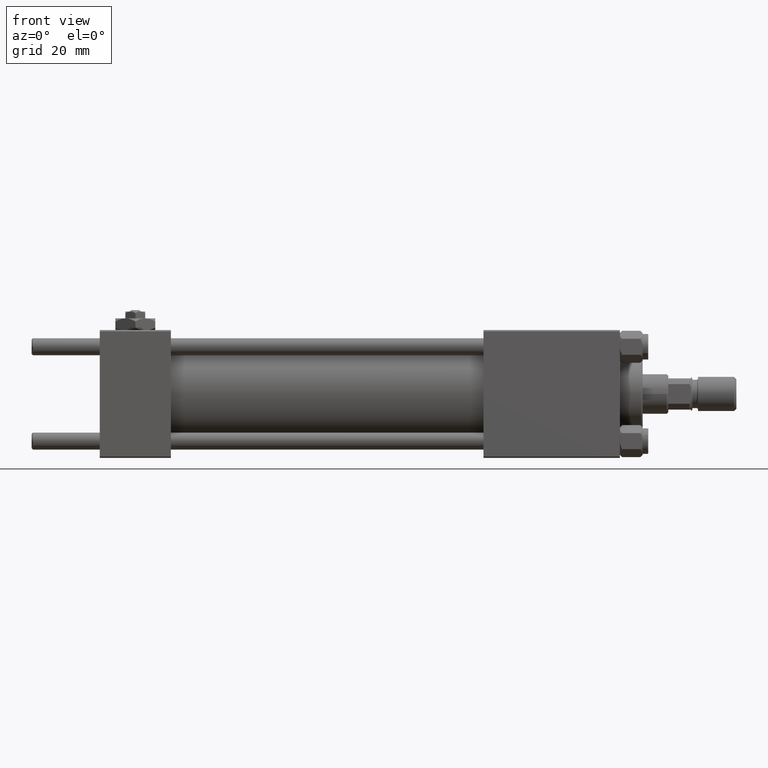
[diagram: clean part render]
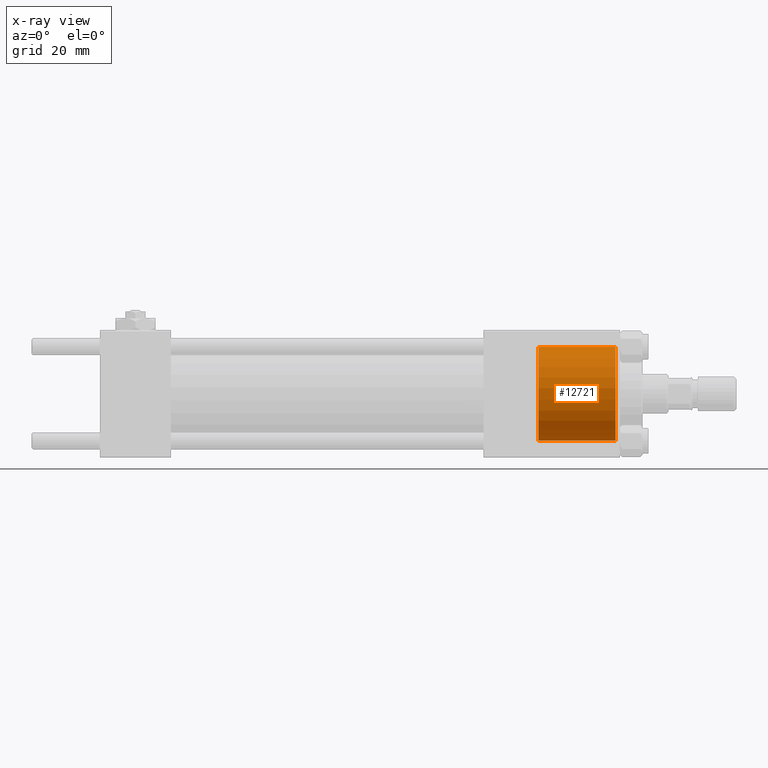
[diagram: x-ray — body ghosted, one internal face saturated and labeled with its STEP entity id]
A machine part, front view, then the same camera in x-ray: the body is ghosted and one INTERNAL B-rep face — a face not visible from any outside direction — is saturated and labeled: STEP entity #12721.
In plain terms, the highlighted cylindrical surface (partial cylindrical patch) has radius 16.5 mm, axis along (1, 0, 0).
Its self-contained STEP definition (entity closure, byte-faithful):
#372 = EDGE_LOOP ( 'NONE', ( #48719, #6918, #16146, #29872 ) ) ;
#887 = AXIS2_PLACEMENT_3D ( 'NONE', #40254, #46398, #39981 ) ;
#4585 = LINE ( 'NONE', #17479, #29647 ) ;
#5201 = DIRECTION ( 'NONE',  ( 0.000000000000000000, 0.000000000000000000, -1.000000000000000000 ) ) ;
#5602 = DIRECTION ( 'NONE',  ( 1.000000000000000000, 0.000000000000000000, 0.000000000000000000 ) ) ;
#6916 = CARTESIAN_POINT ( 'NONE',  ( 154.2999999999999829, 2.020667218593133100E-15, 16.50000000000000000 ) ) ;
#6918 = ORIENTED_EDGE ( 'NONE', *, *, #16722, .T. ) ;
#8048 = CIRCLE ( 'NONE', #40843, 16.50000000000000000 ) ;
#10437 = CARTESIAN_POINT ( 'NONE',  ( 154.2999999999999829, 2.020667218593133100E-15, 16.50000000000000000 ) ) ;
#12721 = ADVANCED_FACE ( 'NONE', ( #42447 ), #24181, .F. ) ;
#12844 = DIRECTION ( 'NONE',  ( 1.000000000000000000, 0.000000000000000000, 0.000000000000000000 ) ) ;
#14695 = VERTEX_POINT ( 'NONE', #6916 ) ;
#15298 = VERTEX_POINT ( 'NONE', #43919 ) ;
#16146 = ORIENTED_EDGE ( 'NONE', *, *, #36787, .T. ) ;
#16722 = EDGE_CURVE ( 'NONE', #14695, #37855, #22550, .T. ) ;
#17479 = CARTESIAN_POINT ( 'NONE',  ( 154.2999999999999829, 0.000000000000000000, -16.50000000000000000 ) ) ;
#20951 = EDGE_CURVE ( 'NONE', #43604, #15298, #4585, .T. ) ;
#21010 = CARTESIAN_POINT ( 'NONE',  ( 154.2999999999999829, 0.000000000000000000, 0.000000000000000000 ) ) ;
#22550 = LINE ( 'NONE', #10437, #28676 ) ;
#24181 = CYLINDRICAL_SURFACE ( 'NONE', #887, 16.50000000000000000 ) ;
#28676 = VECTOR ( 'NONE', #42571, 1000.000000000000000 ) ;
#29255 = EDGE_CURVE ( 'NONE', #14695, #43604, #8048, .T. ) ;
#29647 = VECTOR ( 'NONE', #36737, 1000.000000000000000 ) ;
#29872 = ORIENTED_EDGE ( 'NONE', *, *, #20951, .F. ) ;
#33275 = CARTESIAN_POINT ( 'NONE',  ( 181.5000000000000000, 0.000000000000000000, 0.000000000000000000 ) ) ;
#33537 = DIRECTION ( 'NONE',  ( 0.000000000000000000, 0.000000000000000000, 1.000000000000000000 ) ) ;
#36737 = DIRECTION ( 'NONE',  ( 1.000000000000000000, -0.000000000000000000, -0.000000000000000000 ) ) ;
#36787 = EDGE_CURVE ( 'NONE', #37855, #15298, #46004, .T. ) ;
#37585 = AXIS2_PLACEMENT_3D ( 'NONE', #33275, #5602, #33537 ) ;
#37855 = VERTEX_POINT ( 'NONE', #44292 ) ;
#39981 = DIRECTION ( 'NONE',  ( 0.000000000000000000, 0.000000000000000000, -1.000000000000000000 ) ) ;
#40254 = CARTESIAN_POINT ( 'NONE',  ( 154.2999999999999829, 0.000000000000000000, 0.000000000000000000 ) ) ;
#40385 = CARTESIAN_POINT ( 'NONE',  ( 154.2999999999999829, 0.000000000000000000, -16.50000000000000000 ) ) ;
#40843 = AXIS2_PLACEMENT_3D ( 'NONE', #21010, #12844, #5201 ) ;
#42447 = FACE_OUTER_BOUND ( 'NONE', #372, .T. ) ;
#42571 = DIRECTION ( 'NONE',  ( 1.000000000000000000, -0.000000000000000000, -0.000000000000000000 ) ) ;
#43604 = VERTEX_POINT ( 'NONE', #40385 ) ;
#43919 = CARTESIAN_POINT ( 'NONE',  ( 181.5000000000000000, 0.000000000000000000, -16.50000000000000000 ) ) ;
#44292 = CARTESIAN_POINT ( 'NONE',  ( 181.5000000000000000, 2.020667218593133100E-15, 16.50000000000000000 ) ) ;
#46004 = CIRCLE ( 'NONE', #37585, 16.50000000000000000 ) ;
#46398 = DIRECTION ( 'NONE',  ( 1.000000000000000000, -0.000000000000000000, -0.000000000000000000 ) ) ;
#48719 = ORIENTED_EDGE ( 'NONE', *, *, #29255, .F. ) ;